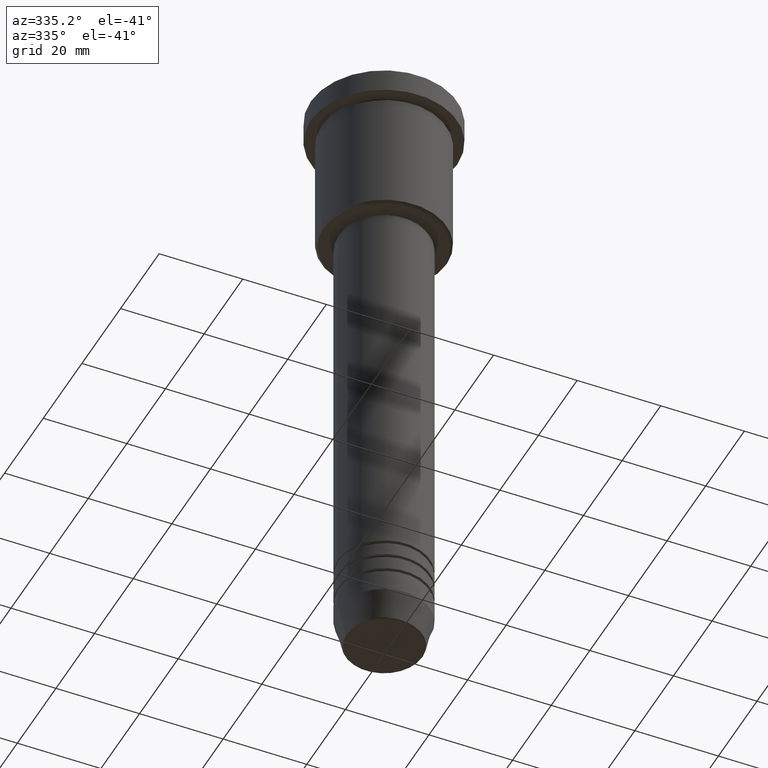
[diagram: clean part render]
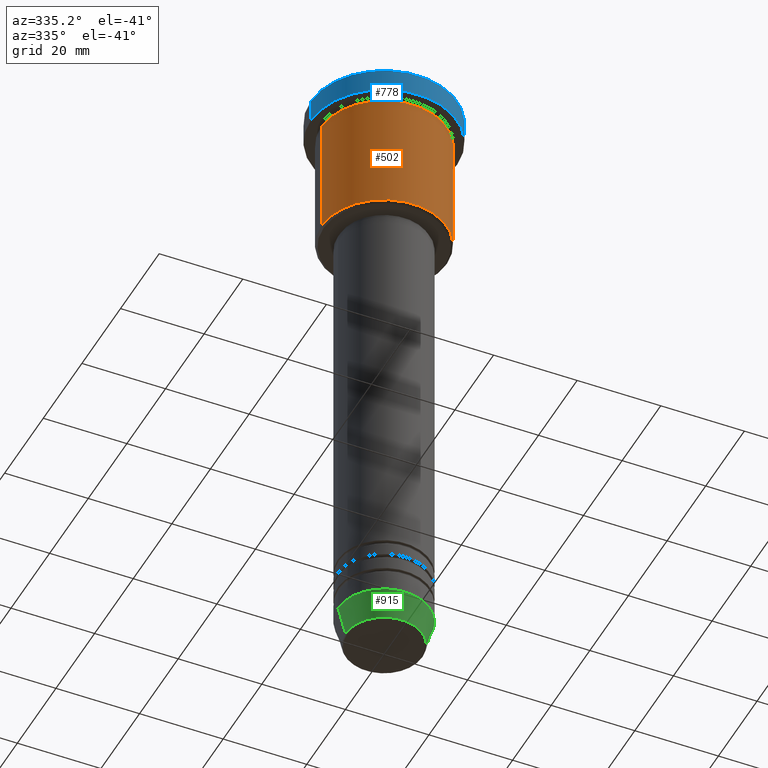
[diagram: same view with three faces highlighted in distinct colors, each labeled with its STEP entity id]
A machine part, auxiliary view with three faces highlighted in distinct colors.
Their STEP definitions:

[orange] entity #502 — the highlighted cylindrical surface (partial cylindrical patch) has radius 15 mm, axis along (-0, -0, 1).
#2 = EDGE_CURVE ( 'NONE', #1083, #572, #372, .T. ) ;
#37 = DIRECTION ( 'NONE',  ( -0.000000000000000000, -0.000000000000000000, 1.000000000000000000 ) ) ;
#40 = ORIENTED_EDGE ( 'NONE', *, *, #322, .T. ) ;
#42 = DIRECTION ( 'NONE',  ( 1.000000000000000000, 0.000000000000000000, 0.000000000000000000 ) ) ;
#43 = CIRCLE ( 'NONE', #911, 15.00000000000000000 ) ;
#74 = EDGE_CURVE ( 'NONE', #158, #388, #43, .T. ) ;
#107 = ORIENTED_EDGE ( 'NONE', *, *, #2, .F. ) ;
#108 = CARTESIAN_POINT ( 'NONE',  ( -15.00000000000000000, 1.836970198721029589E-15, -6.999999999999995559 ) ) ;
#158 = VERTEX_POINT ( 'NONE', #436 ) ;
#192 = EDGE_CURVE ( 'NONE', #158, #1083, #1085, .T. ) ;
#311 = DIRECTION ( 'NONE',  ( -0.000000000000000000, -0.000000000000000000, 1.000000000000000000 ) ) ;
#322 = EDGE_CURVE ( 'NONE', #388, #572, #1126, .T. ) ;
#325 = FACE_OUTER_BOUND ( 'NONE', #723, .T. ) ;
#351 = CARTESIAN_POINT ( 'NONE',  ( 0.000000000000000000, 0.000000000000000000, -35.49999999999997868 ) ) ;
#372 = CIRCLE ( 'NONE', #524, 15.00000000000000000 ) ;
#388 = VERTEX_POINT ( 'NONE', #1175 ) ;
#436 = CARTESIAN_POINT ( 'NONE',  ( -15.00000000000000000, 1.836970198721029589E-15, -35.49999999999997868 ) ) ;
#502 = ADVANCED_FACE ( 'NONE', ( #325 ), #860, .T. ) ;
#503 = ORIENTED_EDGE ( 'NONE', *, *, #192, .F. ) ;
#524 = AXIS2_PLACEMENT_3D ( 'NONE', #1134, #311, #42 ) ;
#538 = DIRECTION ( 'NONE',  ( -1.000000000000000000, 0.000000000000000000, 0.000000000000000000 ) ) ;
#572 = VERTEX_POINT ( 'NONE', #725 ) ;
#578 = VECTOR ( 'NONE', #747, 1000.000000000000000 ) ;
#618 = VECTOR ( 'NONE', #757, 1000.000000000000000 ) ;
#687 = DIRECTION ( 'NONE',  ( 1.000000000000000000, 0.000000000000000000, 0.000000000000000000 ) ) ;
#723 = EDGE_LOOP ( 'NONE', ( #503, #907, #40, #107 ) ) ;
#725 = CARTESIAN_POINT ( 'NONE',  ( 15.00000000000000000, 0.000000000000000000, -6.999999999999995559 ) ) ;
#742 = CARTESIAN_POINT ( 'NONE',  ( 15.00000000000000000, 0.000000000000000000, 0.000000000000000000 ) ) ;
#747 = DIRECTION ( 'NONE',  ( -0.000000000000000000, -0.000000000000000000, 1.000000000000000000 ) ) ;
#757 = DIRECTION ( 'NONE',  ( -0.000000000000000000, -0.000000000000000000, 1.000000000000000000 ) ) ;
#767 = CARTESIAN_POINT ( 'NONE',  ( 0.000000000000000000, 0.000000000000000000, 0.000000000000000000 ) ) ;
#860 = CYLINDRICAL_SURFACE ( 'NONE', #1106, 15.00000000000000000 ) ;
#907 = ORIENTED_EDGE ( 'NONE', *, *, #74, .T. ) ;
#910 = DIRECTION ( 'NONE',  ( -0.000000000000000000, -0.000000000000000000, 1.000000000000000000 ) ) ;
#911 = AXIS2_PLACEMENT_3D ( 'NONE', #351, #910, #538 ) ;
#912 = CARTESIAN_POINT ( 'NONE',  ( -15.00000000000000000, 1.836970198721029589E-15, 0.000000000000000000 ) ) ;
#1083 = VERTEX_POINT ( 'NONE', #108 ) ;
#1085 = LINE ( 'NONE', #912, #618 ) ;
#1106 = AXIS2_PLACEMENT_3D ( 'NONE', #767, #37, #687 ) ;
#1126 = LINE ( 'NONE', #742, #578 ) ;
#1134 = CARTESIAN_POINT ( 'NONE',  ( 0.000000000000000000, 0.000000000000000000, -6.999999999999995559 ) ) ;
#1175 = CARTESIAN_POINT ( 'NONE',  ( 15.00000000000000000, 0.000000000000000000, -35.49999999999997868 ) ) ;

[blue] entity #778 — the highlighted cylindrical surface (partial cylindrical patch) has radius 17.5 mm, axis along (-0, -0, 1).
#12 = CARTESIAN_POINT ( 'NONE',  ( 0.000000000000000000, 0.000000000000000000, -0.4999999999999865663 ) ) ;
#19 = DIRECTION ( 'NONE',  ( 1.000000000000000000, 0.000000000000000000, 0.000000000000000000 ) ) ;
#106 = DIRECTION ( 'NONE',  ( -0.000000000000000000, -0.000000000000000000, 1.000000000000000000 ) ) ;
#111 = DIRECTION ( 'NONE',  ( -0.000000000000000000, -0.000000000000000000, 1.000000000000000000 ) ) ;
#150 = VERTEX_POINT ( 'NONE', #515 ) ;
#170 = ORIENTED_EDGE ( 'NONE', *, *, #1136, .T. ) ;
#193 = ORIENTED_EDGE ( 'NONE', *, *, #773, .F. ) ;
#199 = LINE ( 'NONE', #460, #563 ) ;
#204 = CIRCLE ( 'NONE', #218, 17.50000000000000000 ) ;
#206 = DIRECTION ( 'NONE',  ( 0.000000000000000000, 0.000000000000000000, -1.000000000000000000 ) ) ;
#218 = AXIS2_PLACEMENT_3D ( 'NONE', #12, #206, #19 ) ;
#292 = DIRECTION ( 'NONE',  ( 1.000000000000000000, 0.000000000000000000, 0.000000000000000000 ) ) ;
#300 = CARTESIAN_POINT ( 'NONE',  ( 17.50000000000000000, 0.000000000000000000, -5.999999999999995559 ) ) ;
#328 = VERTEX_POINT ( 'NONE', #846 ) ;
#366 = CYLINDRICAL_SURFACE ( 'NONE', #448, 17.50000000000000000 ) ;
#393 = VECTOR ( 'NONE', #568, 1000.000000000000000 ) ;
#448 = AXIS2_PLACEMENT_3D ( 'NONE', #470, #838, #292 ) ;
#460 = CARTESIAN_POINT ( 'NONE',  ( -17.50000000000000000, 2.143131898507868248E-15, 0.000000000000000000 ) ) ;
#464 = EDGE_LOOP ( 'NONE', ( #193, #764, #170, #887 ) ) ;
#470 = CARTESIAN_POINT ( 'NONE',  ( 0.000000000000000000, 0.000000000000000000, 0.000000000000000000 ) ) ;
#515 = CARTESIAN_POINT ( 'NONE',  ( -17.50000000000000000, 2.143131898507868248E-15, -5.999999999999995559 ) ) ;
#552 = CARTESIAN_POINT ( 'NONE',  ( 0.000000000000000000, 0.000000000000000000, -5.999999999999995559 ) ) ;
#556 = LINE ( 'NONE', #646, #393 ) ;
#563 = VECTOR ( 'NONE', #106, 1000.000000000000000 ) ;
#568 = DIRECTION ( 'NONE',  ( -0.000000000000000000, -0.000000000000000000, 1.000000000000000000 ) ) ;
#646 = CARTESIAN_POINT ( 'NONE',  ( 17.50000000000000000, 0.000000000000000000, 0.000000000000000000 ) ) ;
#683 = EDGE_CURVE ( 'NONE', #328, #1006, #204, .T. ) ;
#686 = VERTEX_POINT ( 'NONE', #300 ) ;
#719 = CIRCLE ( 'NONE', #869, 17.50000000000000000 ) ;
#734 = DIRECTION ( 'NONE',  ( 1.000000000000000000, 0.000000000000000000, 0.000000000000000000 ) ) ;
#764 = ORIENTED_EDGE ( 'NONE', *, *, #1110, .T. ) ;
#773 = EDGE_CURVE ( 'NONE', #150, #1006, #199, .T. ) ;
#778 = ADVANCED_FACE ( 'NONE', ( #1183 ), #366, .T. ) ;
#838 = DIRECTION ( 'NONE',  ( -0.000000000000000000, -0.000000000000000000, 1.000000000000000000 ) ) ;
#846 = CARTESIAN_POINT ( 'NONE',  ( 17.50000000000000000, 0.000000000000000000, -0.4999999999999865663 ) ) ;
#862 = CARTESIAN_POINT ( 'NONE',  ( -17.50000000000000000, 2.143131898507868248E-15, -0.4999999999999865663 ) ) ;
#869 = AXIS2_PLACEMENT_3D ( 'NONE', #552, #111, #734 ) ;
#887 = ORIENTED_EDGE ( 'NONE', *, *, #683, .T. ) ;
#1006 = VERTEX_POINT ( 'NONE', #862 ) ;
#1110 = EDGE_CURVE ( 'NONE', #150, #686, #719, .T. ) ;
#1136 = EDGE_CURVE ( 'NONE', #686, #328, #556, .T. ) ;
#1183 = FACE_OUTER_BOUND ( 'NONE', #464, .T. ) ;

[green] entity #915 — the highlighted conical surface has half-angle 15 deg.
#9 = CIRCLE ( 'NONE', #677, 9.223655072137189492 ) ;
#14 = LINE ( 'NONE', #740, #870 ) ;
#137 = VECTOR ( 'NONE', #749, 1000.000000000000000 ) ;
#164 = DIRECTION ( 'NONE',  ( -0.000000000000000000, -0.000000000000000000, 1.000000000000000000 ) ) ;
#179 = CARTESIAN_POINT ( 'NONE',  ( 9.223655072137189492, 0.000000000000000000, -150.6294095225512706 ) ) ;
#200 = VERTEX_POINT ( 'NONE', #741 ) ;
#236 = CIRCLE ( 'NONE', #1073, 11.00000000000000000 ) ;
#239 = CARTESIAN_POINT ( 'NONE',  ( -9.223655072137189492, 1.238341722557647202E-15, -150.6294095225512706 ) ) ;
#361 = CARTESIAN_POINT ( 'NONE',  ( 0.000000000000000000, 0.000000000000000000, -144.0000000000000284 ) ) ;
#364 = CARTESIAN_POINT ( 'NONE',  ( 0.000000000000000000, 0.000000000000000000, -150.6294095225512706 ) ) ;
#402 = EDGE_CURVE ( 'NONE', #454, #420, #9, .T. ) ;
#420 = VERTEX_POINT ( 'NONE', #179 ) ;
#434 = ORIENTED_EDGE ( 'NONE', *, *, #728, .F. ) ;
#445 = DIRECTION ( 'NONE',  ( -0.000000000000000000, -0.000000000000000000, 1.000000000000000000 ) ) ;
#454 = VERTEX_POINT ( 'NONE', #239 ) ;
#469 = CONICAL_SURFACE ( 'NONE', #601, 11.00000000000000000, 0.2617993877991500740 ) ;
#521 = DIRECTION ( 'NONE',  ( -0.000000000000000000, -0.000000000000000000, 1.000000000000000000 ) ) ;
#534 = FACE_OUTER_BOUND ( 'NONE', #1081, .T. ) ;
#567 = ORIENTED_EDGE ( 'NONE', *, *, #1172, .T. ) ;
#574 = EDGE_CURVE ( 'NONE', #605, #200, #236, .T. ) ;
#601 = AXIS2_PLACEMENT_3D ( 'NONE', #805, #445, #613 ) ;
#605 = VERTEX_POINT ( 'NONE', #629 ) ;
#613 = DIRECTION ( 'NONE',  ( 1.000000000000000000, 0.000000000000000000, 0.000000000000000000 ) ) ;
#629 = CARTESIAN_POINT ( 'NONE',  ( -11.00000000000000000, 1.347111479062088405E-15, -144.0000000000000284 ) ) ;
#641 = ORIENTED_EDGE ( 'NONE', *, *, #574, .F. ) ;
#677 = AXIS2_PLACEMENT_3D ( 'NONE', #364, #164, #997 ) ;
#699 = ORIENTED_EDGE ( 'NONE', *, *, #402, .T. ) ;
#728 = EDGE_CURVE ( 'NONE', #454, #605, #739, .T. ) ;
#739 = LINE ( 'NONE', #744, #137 ) ;
#740 = CARTESIAN_POINT ( 'NONE',  ( 11.00000000000000000, 0.000000000000000000, -144.0000000000000284 ) ) ;
#741 = CARTESIAN_POINT ( 'NONE',  ( 11.00000000000000000, 0.000000000000000000, -144.0000000000000284 ) ) ;
#744 = CARTESIAN_POINT ( 'NONE',  ( -11.00000000000000000, 1.347111479062088405E-15, -144.0000000000000284 ) ) ;
#749 = DIRECTION ( 'NONE',  ( -0.2588190451025213501, 3.169619151431772337E-17, 0.9659258262890680902 ) ) ;
#805 = CARTESIAN_POINT ( 'NONE',  ( 0.000000000000000000, 0.000000000000000000, -144.0000000000000284 ) ) ;
#813 = DIRECTION ( 'NONE',  ( 1.000000000000000000, 0.000000000000000000, 0.000000000000000000 ) ) ;
#867 = DIRECTION ( 'NONE',  ( 0.2588190451025213501, 0.000000000000000000, 0.9659258262890680902 ) ) ;
#870 = VECTOR ( 'NONE', #867, 1000.000000000000000 ) ;
#915 = ADVANCED_FACE ( 'NONE', ( #534 ), #469, .T. ) ;
#997 = DIRECTION ( 'NONE',  ( 1.000000000000000000, 0.000000000000000000, 0.000000000000000000 ) ) ;
#1073 = AXIS2_PLACEMENT_3D ( 'NONE', #361, #521, #813 ) ;
#1081 = EDGE_LOOP ( 'NONE', ( #434, #699, #567, #641 ) ) ;
#1172 = EDGE_CURVE ( 'NONE', #420, #200, #14, .T. ) ;